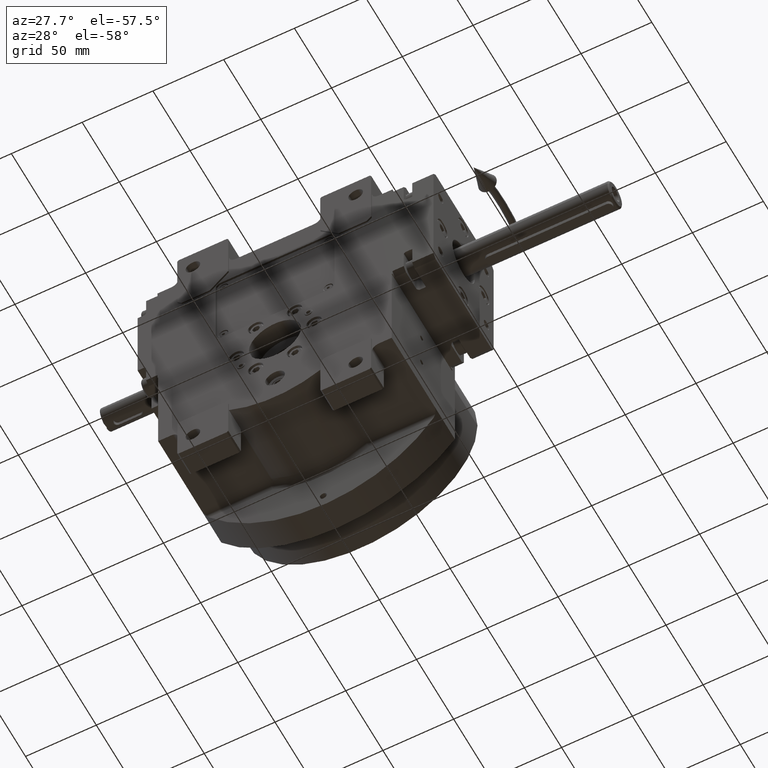
[diagram: clean part render]
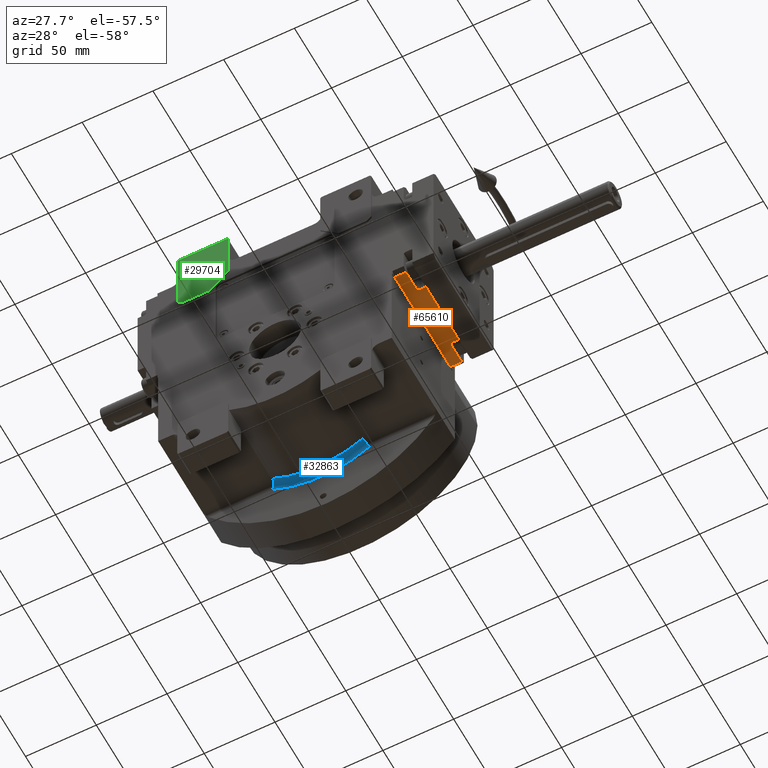
[diagram: same view with three faces highlighted in distinct colors, each labeled with its STEP entity id]
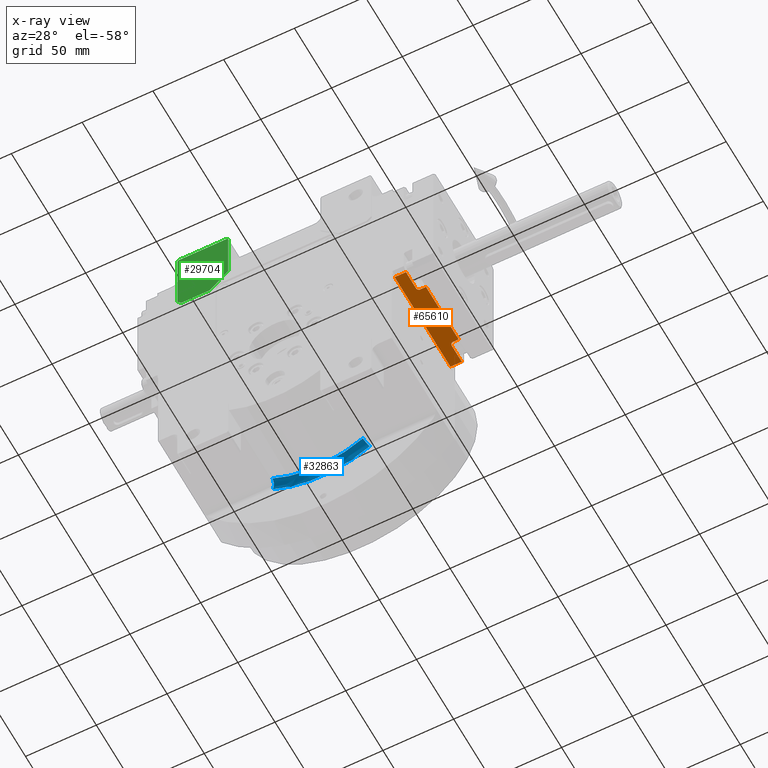
[diagram: x-ray of the same camera — body ghosted, the three highlighted faces saturated]
A machine part, auxiliary view with three faces highlighted in distinct colors.
The next image is the same camera in x-ray (body ghosted, the three faces saturated) — at least one of them is partly hidden behind the body in this view.
Their STEP definitions:

[orange] entity #65610 — the highlighted planar face has unit normal (-0, 0, -1).
#72 = EDGE_LOOP ( 'NONE', ( #55619, #17039, #46094, #15867, #63797, #61981, #9540, #61452, #35617, #29866 ) ) ;
#666 = DIRECTION ( 'NONE',  ( 2.320366121466574961E-14, -1.000000000000000000, 2.109423746787931928E-15 ) ) ;
#1286 = DIRECTION ( 'NONE',  ( 2.320366121466574961E-14, -1.000000000000000000, 2.109423746787931928E-15 ) ) ;
#2011 = EDGE_CURVE ( 'NONE', #30581, #4828, #23034, .T. ) ;
#3555 = LINE ( 'NONE', #57641, #24220 ) ;
#3794 = DIRECTION ( 'NONE',  ( -1.000000000000000000, 2.320366121466574014E-14, -8.437694987151244927E-15 ) ) ;
#4828 = VERTEX_POINT ( 'NONE', #44326 ) ;
#6676 = VERTEX_POINT ( 'NONE', #12312 ) ;
#8058 = CARTESIAN_POINT ( 'NONE',  ( 21.99999999999973355, -10.00000000000052225, -48.99999999999947420 ) ) ;
#8330 = EDGE_CURVE ( 'NONE', #55180, #6676, #25556, .T. ) ;
#8678 = CARTESIAN_POINT ( 'NONE',  ( 37.49999999999973710, -1.054711873393898713E-12, -48.99999999999947420 ) ) ;
#9540 = ORIENTED_EDGE ( 'NONE', *, *, #23403, .T. ) ;
#9860 = VECTOR ( 'NONE', #61350, 1000.000000000000000 ) ;
#11662 = VERTEX_POINT ( 'NONE', #60551 ) ;
#12135 = CARTESIAN_POINT ( 'NONE',  ( 23.99999999999960565, -8.000000000000520473, -48.99999999999947420 ) ) ;
#12312 = CARTESIAN_POINT ( 'NONE',  ( -24.00000000000039435, -7.999999999999466205, -49.00000000000000000 ) ) ;
#12352 = LINE ( 'NONE', #16919, #34782 ) ;
#12779 = CARTESIAN_POINT ( 'NONE',  ( 40.49999999999973710, -1.054711873393898713E-12, -48.99999999999947420 ) ) ;
#14283 = LINE ( 'NONE', #36717, #17923 ) ;
#14747 = EDGE_CURVE ( 'NONE', #6676, #4828, #3555, .T. ) ;
#15707 = CARTESIAN_POINT ( 'NONE',  ( 37.50000000000000000, -8.000000000001048051, -48.99999999999947420 ) ) ;
#15711 = DIRECTION ( 'NONE',  ( 8.437694987151240194E-15, -2.109423746787933900E-15, 1.000000000000000000 ) ) ;
#15867 = ORIENTED_EDGE ( 'NONE', *, *, #67994, .T. ) ;
#15983 = CARTESIAN_POINT ( 'NONE',  ( -37.50000000000026290, 1.054711873393898713E-12, -49.00000000000026290 ) ) ;
#16919 = CARTESIAN_POINT ( 'NONE',  ( 21.99999999999986855, -14.00000000000052580, -48.99999999999947420 ) ) ;
#17039 = ORIENTED_EDGE ( 'NONE', *, *, #22670, .F. ) ;
#17541 = DIRECTION ( 'NONE',  ( -2.320366121466574961E-14, 1.000000000000000000, -2.109423746787931928E-15 ) ) ;
#17923 = VECTOR ( 'NONE', #19891, 1000.000000000000000 ) ;
#18952 = CIRCLE ( 'NONE', #64993, 2.000000000000000000 ) ;
#19891 = DIRECTION ( 'NONE',  ( -2.320366121466574961E-14, 1.000000000000000000, -2.109423746787931928E-15 ) ) ;
#21296 = VERTEX_POINT ( 'NONE', #12135 ) ;
#21320 = DIRECTION ( 'NONE',  ( -2.255140518769849223E-14, 1.000000000000000000, -3.469446951953614189E-15 ) ) ;
#21900 = CARTESIAN_POINT ( 'NONE',  ( 21.99999999999986855, -14.00000000000052580, -48.99999999999947420 ) ) ;
#22174 = DIRECTION ( 'NONE',  ( -1.000000000000000000, 2.320366121466574014E-14, -8.437694987151244927E-15 ) ) ;
#22670 = EDGE_CURVE ( 'NONE', #11662, #30581, #45930, .T. ) ;
#23034 = LINE ( 'NONE', #43757, #65274 ) ;
#23403 = EDGE_CURVE ( 'NONE', #37714, #50571, #12352, .T. ) ;
#24220 = VECTOR ( 'NONE', #57972, 1000.000000000000000 ) ;
#25556 = CIRCLE ( 'NONE', #54735, 2.000000000000001776 ) ;
#25664 = EDGE_CURVE ( 'NONE', #21296, #32965, #18952, .T. ) ;
#27201 = FACE_OUTER_BOUND ( 'NONE', #72, .T. ) ;
#28100 = CARTESIAN_POINT ( 'NONE',  ( -22.00000000000013145, -13.99999999999947065, -49.00000000000000000 ) ) ;
#29833 = CARTESIAN_POINT ( 'NONE',  ( -22.00000000000026290, -9.999999999999467093, -49.00000000000000000 ) ) ;
#29866 = ORIENTED_EDGE ( 'NONE', *, *, #14747, .T. ) ;
#30236 = CARTESIAN_POINT ( 'NONE',  ( -22.00000000000013145, -13.99999999999947065, -49.00000000000000000 ) ) ;
#30581 = VERTEX_POINT ( 'NONE', #15983 ) ;
#32563 = CARTESIAN_POINT ( 'NONE',  ( 23.99999999999973710, -10.00000000000052225, -48.99999999999947420 ) ) ;
#32965 = VERTEX_POINT ( 'NONE', #8058 ) ;
#34782 = VECTOR ( 'NONE', #22174, 1000.000000000000000 ) ;
#35617 = ORIENTED_EDGE ( 'NONE', *, *, #8330, .T. ) ;
#36497 = VECTOR ( 'NONE', #666, 1000.000000000000000 ) ;
#36717 = CARTESIAN_POINT ( 'NONE',  ( 21.99999999999986855, -14.00000000000052580, -48.99999999999947420 ) ) ;
#37529 = CARTESIAN_POINT ( 'NONE',  ( -24.00000000000026290, -9.999999999999467093, -49.00000000000000000 ) ) ;
#37714 = VERTEX_POINT ( 'NONE', #21900 ) ;
#38402 = DIRECTION ( 'NONE',  ( 8.437694987151293837E-15, 2.109423746787542625E-15, -1.000000000000000000 ) ) ;
#39887 = LINE ( 'NONE', #49768, #9860 ) ;
#40846 = VECTOR ( 'NONE', #17541, 1000.000000000000000 ) ;
#41405 = VECTOR ( 'NONE', #3794, 1000.000000000000000 ) ;
#42803 = CARTESIAN_POINT ( 'NONE',  ( 37.49999999999973710, -1.054711873393898713E-12, -48.99999999999947420 ) ) ;
#43757 = CARTESIAN_POINT ( 'NONE',  ( -37.50000000000026290, 1.054711873393898713E-12, -49.00000000000026290 ) ) ;
#44326 = CARTESIAN_POINT ( 'NONE',  ( -37.50000000000000000, -7.999999999998938627, -49.00000000000026290 ) ) ;
#45930 = LINE ( 'NONE', #8678, #41405 ) ;
#46094 = ORIENTED_EDGE ( 'NONE', *, *, #47508, .T. ) ;
#47508 = EDGE_CURVE ( 'NONE', #11662, #66384, #69176, .T. ) ;
#48617 = DIRECTION ( 'NONE',  ( -1.000000000000000000, 2.320366121466574014E-14, -8.437694987151244927E-15 ) ) ;
#49768 = CARTESIAN_POINT ( 'NONE',  ( 37.50000000000000000, -8.000000000001048051, -48.99999999999947420 ) ) ;
#50571 = VERTEX_POINT ( 'NONE', #30236 ) ;
#53009 = DIRECTION ( 'NONE',  ( 1.000000000000000000, -2.515349040166368078E-14, 6.938893903907222067E-15 ) ) ;
#54735 = AXIS2_PLACEMENT_3D ( 'NONE', #37529, #58982, #53009 ) ;
#55180 = VERTEX_POINT ( 'NONE', #29833 ) ;
#55619 = ORIENTED_EDGE ( 'NONE', *, *, #2011, .F. ) ;
#55636 = EDGE_CURVE ( 'NONE', #37714, #32965, #14283, .T. ) ;
#57641 = CARTESIAN_POINT ( 'NONE',  ( -24.00000000000039435, -7.999999999999466205, -49.00000000000000000 ) ) ;
#57966 = AXIS2_PLACEMENT_3D ( 'NONE', #12779, #38402, #48617 ) ;
#57972 = DIRECTION ( 'NONE',  ( -1.000000000000000000, 2.320366121466574014E-14, -8.437694987151244927E-15 ) ) ;
#58982 = DIRECTION ( 'NONE',  ( 8.437694987151240194E-15, -2.109423746787933900E-15, 1.000000000000000000 ) ) ;
#60551 = CARTESIAN_POINT ( 'NONE',  ( 37.49999999999973710, -1.054711873393898713E-12, -48.99999999999947420 ) ) ;
#60920 = PLANE ( 'NONE',  #57966 ) ;
#61350 = DIRECTION ( 'NONE',  ( -1.000000000000000000, 2.320366121466574014E-14, -8.437694987151244927E-15 ) ) ;
#61452 = ORIENTED_EDGE ( 'NONE', *, *, #62990, .T. ) ;
#61981 = ORIENTED_EDGE ( 'NONE', *, *, #55636, .F. ) ;
#62990 = EDGE_CURVE ( 'NONE', #50571, #55180, #65353, .T. ) ;
#63797 = ORIENTED_EDGE ( 'NONE', *, *, #25664, .T. ) ;
#64993 = AXIS2_PLACEMENT_3D ( 'NONE', #32563, #15711, #21320 ) ;
#65274 = VECTOR ( 'NONE', #1286, 1000.000000000000000 ) ;
#65353 = LINE ( 'NONE', #28100, #40846 ) ;
#65610 = ADVANCED_FACE ( 'NONE', ( #27201 ), #60920, .T. ) ;
#66384 = VERTEX_POINT ( 'NONE', #15707 ) ;
#67994 = EDGE_CURVE ( 'NONE', #66384, #21296, #39887, .T. ) ;
#69176 = LINE ( 'NONE', #42803, #36497 ) ;

[blue] entity #32863 — the highlighted face is a freeform B-spline surface patch.
#15 = CARTESIAN_POINT ( 'NONE',  ( 14.73316211460674019, 17.55174771232135100, -65.60818881742689257 ) ) ;
#369 = CARTESIAN_POINT ( 'NONE',  ( 32.01794642272439262, 17.75200676098285157, -58.85445954576479721 ) ) ;
#699 = CARTESIAN_POINT ( 'NONE',  ( -31.65484861374630299, 22.02945599755280170, -64.31643460213680896 ) ) ;
#724 = CARTESIAN_POINT ( 'NONE',  ( 32.69782428689194376, 20.20639863448462492, -59.89099290944819387 ) ) ;
#1051 = CARTESIAN_POINT ( 'NONE',  ( 25.60877324666465071, 22.27561228193904697, -67.13024366902838835 ) ) ;
#1074 = CARTESIAN_POINT ( 'NONE',  ( 33.48383523637958348, 21.39952481451699740, -61.23323436435543243 ) ) ;
#1290 = CARTESIAN_POINT ( 'NONE',  ( 29.44072205902208239, 17.04842239295195228, -60.25462851536783404 ) ) ;
#1412 = CARTESIAN_POINT ( 'NONE',  ( -5.293759152372389032, 22.60964664401005209, -70.84867779253190179 ) ) ;
#1428 = CARTESIAN_POINT ( 'NONE',  ( 32.72256152614408364, 20.25982518854230108, -59.93185774238567376 ) ) ;
#1778 = CARTESIAN_POINT ( 'NONE',  ( 33.62399696553287498, 21.53086136857003652, -61.47963672372196697 ) ) ;
#2326 = B_SPLINE_CURVE_WITH_KNOTS ( 'NONE', 3,
 ( #25432, #46164, #67633, #14196, #8922, #30354, #51792, #3675, #46512, #46843, #14906, #57756, #7378, #55505, #59759, #54466, #49545, #724, #1428, #32701, #11947, #16524, #7032, #55167, #50228, #65007, #22132, #34070, #43551, #66062, #23544, #1074, #64661, #44577, #28466, #49892, #1778, #33728, #16872, #60440, #11615, #11276, #23178, #37932, #28800, #27756, #49180, #60096 ),
 .UNSPECIFIED., .F., .F.,
 ( 4, 2, 2, 1, 1, 2, 2, 2, 2, 1, 1, 1, 2, 2, 2, 2, 2, 1, 1, 1, 2, 2, 2, 2, 1, 1, 2, 2, 4 ),
 ( 0.000000000000000000, 0.1249999999999205635, 0.1874999999998815392, 0.2187499999998619438, 0.2343749999998528122, 0.2421874999998485933, 0.2499999999998444022, 0.3749999999997710165, 0.4374999999997347122, 0.4687499999997153388, 0.4843749999997056244, 0.4921874999997002398, 0.4960937499996980748, 0.4999999999996959099, 0.6249999999996843636, 0.6874999999996797007, 0.7187499999996763700, 0.7343749999996745936, 0.7421874999996742606, 0.7460937499996737055, 0.7480468749996734834, 0.7499999999996732614, 0.8124999999997548628, 0.8437499999997970512, 0.8593749999998184785, 0.8671874999998295808, 0.8710937499998353539, 0.8749999999998410161, 1.000000000000000000 ),
 .UNSPECIFIED. ) ;
#3675 = CARTESIAN_POINT ( 'NONE',  ( 32.19055830556653319, 18.61102054775242465, -59.09698003137811639 ) ) ;
#4599 = CARTESIAN_POINT ( 'NONE',  ( 5.080498079819370183, 21.43171770608825000, -68.64619728877529781 ) ) ;
#4634 = CARTESIAN_POINT ( 'NONE',  ( -23.47284083894535911, 22.32516390193326572, -67.69614973545274950 ) ) ;
#4931 = CARTESIAN_POINT ( 'NONE',  ( 32.58211394110570325, 20.03721122118130182, -59.69285158621150345 ) ) ;
#5263 = CARTESIAN_POINT ( 'NONE',  ( -29.48146737460379896, 17.88159068325219891, -60.23419211705630261 ) ) ;
#5632 = CARTESIAN_POINT ( 'NONE',  ( 31.98734971697150087, 16.91834084366389845, -58.87108418469269822 ) ) ;
#5981 = CARTESIAN_POINT ( 'NONE',  ( -14.78875358798659789, 18.38516779463245143, -65.59621327763490228 ) ) ;
#6193 = CARTESIAN_POINT ( 'NONE',  ( -29.45257542784745652, 17.04781651606748127, -60.24818422784169769 ) ) ;
#6311 = CARTESIAN_POINT ( 'NONE',  ( 5.189664148516230924, 22.33884502181484777, -70.04835568725430051 ) ) ;
#6531 = CARTESIAN_POINT ( 'NONE',  ( -14.77288173921127701, 17.55091193554919471, -65.59925739486833152 ) ) ;
#7032 = CARTESIAN_POINT ( 'NONE',  ( 32.84356451004986610, 20.51291761275329151, -60.13242002078200699 ) ) ;
#7378 = CARTESIAN_POINT ( 'NONE',  ( 32.35433031463118425, 19.28630331395154229, -59.33910833681502339 ) ) ;
#8922 = CARTESIAN_POINT ( 'NONE',  ( 32.10350489515772665, 18.14000914207347748, -58.97787707114111555 ) ) ;
#9841 = CARTESIAN_POINT ( 'NONE',  ( -29.60169563607699672, 18.70212772068944673, -60.40819800351219726 ) ) ;
#10210 = CARTESIAN_POINT ( 'NONE',  ( 25.01775090583850059, 21.94079065737765077, -65.60031027760419420 ) ) ;
#10242 = CARTESIAN_POINT ( 'NONE',  ( -31.74689637493835548, 22.02422287345092755, -64.25637803985283369 ) ) ;
#10557 = CARTESIAN_POINT ( 'NONE',  ( -32.58211292965309980, 20.03721089926845167, -59.69284975180789843 ) ) ;
#11249 = CARTESIAN_POINT ( 'NONE',  ( 23.94370797182140009, 18.94735996923695254, -63.03005720894730501 ) ) ;
#11276 = CARTESIAN_POINT ( 'NONE',  ( 33.89316598205211761, 21.72079560458065117, -61.95847620662187438 ) ) ;
#11367 = CARTESIAN_POINT ( 'NONE',  ( 34.37448425976209876, 21.89931667216864852, -62.82870454466170429 ) ) ;
#11615 = CARTESIAN_POINT ( 'NONE',  ( 33.85713766137644853, 21.69930227409577128, -61.89403531663299418 ) ) ;
#11924 = CARTESIAN_POINT ( 'NONE',  ( -25.04405692028204911, 21.93979951944659845, -65.58923440282170247 ) ) ;
#11947 = CARTESIAN_POINT ( 'NONE',  ( 32.74046267663956655, 20.29774043094684899, -59.96149064735983814 ) ) ;
#14196 = CARTESIAN_POINT ( 'NONE',  ( 32.08080791320756475, 17.98764634065216939, -58.94941265465860880 ) ) ;
#14826 = CARTESIAN_POINT ( 'NONE',  ( 31.74721959813282979, 22.02420755821067999, -64.25620298585577927 ) ) ;
#14906 = CARTESIAN_POINT ( 'NONE',  ( 32.21505596508978897, 18.72422514810597960, -59.13217146334259411 ) ) ;
#15132 = CARTESIAN_POINT ( 'NONE',  ( -30.00290205058615101, 20.16710264854260259, -61.10047760549640117 ) ) ;
#15161 = CARTESIAN_POINT ( 'NONE',  ( -2.989791404646014783, 22.66357855640624308, -71.56424693609983478 ) ) ;
#15456 = CARTESIAN_POINT ( 'NONE',  ( 33.58176531939849241, 21.56463036862644600, -61.39902706031460156 ) ) ;
#15612 = CARTESIAN_POINT ( 'NONE',  ( -31.98743979880390498, 16.91834305889650025, -58.87107689861610282 ) ) ;
#15829 = CARTESIAN_POINT ( 'NONE',  ( 4.939540259446429715, 17.68846715588675167, -67.06237765273100138 ) ) ;
#16450 = VERTEX_POINT ( 'NONE', #19954 ) ;
#16501 = CARTESIAN_POINT ( 'NONE',  ( 29.58978951225625309, 18.70273482888475058, -60.41468680097980126 ) ) ;
#16524 = CARTESIAN_POINT ( 'NONE',  ( 32.74468400485579167, 20.30659213609053992, -59.96848570823783575 ) ) ;
#16872 = CARTESIAN_POINT ( 'NONE',  ( 33.76859029514489663, 21.64106143382714009, -61.73612088267417874 ) ) ;
#18481 = CARTESIAN_POINT ( 'NONE',  ( 23.82086331600217122, 17.29258934410870197, -62.85166114526040104 ) ) ;
#19242 = EDGE_CURVE ( 'NONE', #16450, #37799, #2326, .T. ) ;
#19734 = CARTESIAN_POINT ( 'NONE',  ( -34.37448426114839606, 21.89931762037159757, -62.82870446426660749 ) ) ;
#19954 = CARTESIAN_POINT ( 'NONE',  ( 31.98743443817719623, 16.91834202203235193, -58.87106939620260704 ) ) ;
#20078 = CARTESIAN_POINT ( 'NONE',  ( 34.37448425976209876, 21.89931667216864852, -62.82870454466170429 ) ) ;
#20282 = ORIENTED_EDGE ( 'NONE', *, *, #19242, .F. ) ;
#20403 = CARTESIAN_POINT ( 'NONE',  ( -32.01794543039404317, 17.75200655022460339, -58.85445773622760157 ) ) ;
#20710 = EDGE_LOOP ( 'NONE', ( #55618, #47060, #20282, #54204 ) ) ;
#20736 = CARTESIAN_POINT ( 'NONE',  ( -5.122250627365549924, 21.43143416067259821, -68.64309445080189676 ) ) ;
#21063 = CARTESIAN_POINT ( 'NONE',  ( 32.87977152734590192, 20.65830054632354873, -60.18633690520509560 ) ) ;
#21100 = CARTESIAN_POINT ( 'NONE',  ( 5.969130634977448224, 22.64734071920593195, -71.37864760761658545 ) ) ;
#21444 = CARTESIAN_POINT ( 'NONE',  ( -32.87977050622575348, 20.65830019420030084, -60.18633505587489907 ) ) ;
#21789 = CARTESIAN_POINT ( 'NONE',  ( -23.84593569003270019, 17.29159919360714781, -62.84117147466660924 ) ) ;
#22132 = CARTESIAN_POINT ( 'NONE',  ( 33.31357684144703057, 21.21470799708574617, -60.93584403762083213 ) ) ;
#22346 = CARTESIAN_POINT ( 'NONE',  ( -31.98743979880390498, 16.91834305889650025, -58.87107689861610282 ) ) ;
#22472 = CARTESIAN_POINT ( 'NONE',  ( -25.63569944676440215, 22.27462078963334946, -67.11890327536170275 ) ) ;
#23178 = CARTESIAN_POINT ( 'NONE',  ( 33.90884330140355729, 21.72980709277304356, -61.98654436986177529 ) ) ;
#23521 = CARTESIAN_POINT ( 'NONE',  ( 31.64213078674164947, 22.03006558229255418, -64.32339653252410017 ) ) ;
#23544 = CARTESIAN_POINT ( 'NONE',  ( 33.46693639570202805, 21.38264226011981961, -61.20360356247892497 ) ) ;
#24525 = VERTEX_POINT ( 'NONE', #40920 ) ;
#25432 = CARTESIAN_POINT ( 'NONE',  ( 31.98743443817719623, 16.91834202203235193, -58.87106939620260704 ) ) ;
#25673 = CARTESIAN_POINT ( 'NONE',  ( -34.37448426114839606, 21.89931762037159757, -62.82870446426660749 ) ) ;
#25708 = CARTESIAN_POINT ( 'NONE',  ( 2.989797780335714528, 22.66357457562292410, -71.56420143553830826 ) ) ;
#26027 = CARTESIAN_POINT ( 'NONE',  ( -14.77288166437734063, 17.55090800214700053, -65.59925740921940474 ) ) ;
#26353 = CARTESIAN_POINT ( 'NONE',  ( -33.58176426494383549, 21.56462997295396988, -61.39902518003657406 ) ) ;
#26359 = CARTESIAN_POINT ( 'NONE',  ( -31.98734872618995340, 16.91834067345600090, -58.87108237431030489 ) ) ;
#26384 = CARTESIAN_POINT ( 'NONE',  ( -5.969118748666172536, 22.64733676919941985, -71.37860245883551613 ) ) ;
#26688 = CARTESIAN_POINT ( 'NONE',  ( 14.81049246554406018, 19.20702028404180339, -65.80666838281179309 ) ) ;
#26987 = B_SPLINE_CURVE_WITH_KNOTS ( 'NONE', 3,
 ( #20078, #14826, #52754, #69235, #42507, #58369, #52386, #21100, #25708, #15161, #26384, #41118, #36554, #58001, #4634, #67900, #10242, #19734 ),
 .UNSPECIFIED., .F., .F.,
 ( 4, 2, 2, 2, 2, 2, 2, 2, 4 ),
 ( 0.000000000000000000, 0.1250000000000000000, 0.2500000000000000000, 0.3750000000000000000, 0.5000000000000000000, 0.6250000000000000000, 0.7500000000000000000, 0.8750000000000000000, 1.000000000000000000 ),
 .UNSPECIFIED. ) ;
#27065 = CARTESIAN_POINT ( 'NONE',  ( 29.46960603675275081, 17.88219718071835018, -60.24064871479900773 ) ) ;
#27411 = CARTESIAN_POINT ( 'NONE',  ( 29.99084088730355191, 20.16771084712490136, -61.10706471000440132 ) ) ;
#27568 = CARTESIAN_POINT ( 'NONE',  ( -32.14775137455149689, 18.57243314881601393, -59.02158095131412807 ) ) ;
#27734 = CARTESIAN_POINT ( 'NONE',  ( -25.33772548572940053, 22.21075815114509666, -66.33927685919370276 ) ) ;
#27756 = CARTESIAN_POINT ( 'NONE',  ( 34.07635742203913765, 21.82262469278764527, -62.28672716919844987 ) ) ;
#28466 = CARTESIAN_POINT ( 'NONE',  ( 33.49901502991529156, 21.41446307854819153, -61.25986731557330245 ) ) ;
#28778 = CARTESIAN_POINT ( 'NONE',  ( 31.27435154526424910, 21.96622055914739846, -63.57628109349388978 ) ) ;
#28800 = CARTESIAN_POINT ( 'NONE',  ( 33.92535459463461223, 21.73912870223322003, -62.01611895463970825 ) ) ;
#29012 = CARTESIAN_POINT ( 'NONE',  ( 31.98743443817719623, 16.91834202203235193, -58.87106939620260704 ) ) ;
#29140 = CARTESIAN_POINT ( 'NONE',  ( -30.92465710468345108, 21.69472733084185023, -62.85209919801850020 ) ) ;
#30354 = CARTESIAN_POINT ( 'NONE',  ( 32.14281245953367971, 18.36695712941077119, -59.03041155637551185 ) ) ;
#31276 = CARTESIAN_POINT ( 'NONE',  ( 15.01361162066794996, 20.67284306709315089, -66.58199389556790493 ) ) ;
#31628 = CARTESIAN_POINT ( 'NONE',  ( -23.87045234341555044, 18.12560795860210305, -62.83233301949760374 ) ) ;
#31964 = CARTESIAN_POINT ( 'NONE',  ( -5.075381098711249983, 20.80979854058070089, -68.06676717787489395 ) ) ;
#32673 = CARTESIAN_POINT ( 'NONE',  ( 4.965702433001919935, 19.34401517241849788, -67.27165907835350822 ) ) ;
#32701 = CARTESIAN_POINT ( 'NONE',  ( 32.73328586040518928, 20.28259200613085511, -59.94960616786701735 ) ) ;
#32863 = ADVANCED_FACE ( 'NONE', ( #53743 ), #33950, .F. ) ;
#33017 = CARTESIAN_POINT ( 'NONE',  ( -15.70109730716845142, 22.47154757257565194, -69.28735807076829190 ) ) ;
#33218 = CARTESIAN_POINT ( 'NONE',  ( -4.980135495433235526, 17.68818881517152874, -67.05937529452785384 ) ) ;
#33338 = CARTESIAN_POINT ( 'NONE',  ( -5.356016771387229980, 22.67353917850849854, -71.68136855480990732 ) ) ;
#33705 = CARTESIAN_POINT ( 'NONE',  ( -31.28692157794700535, 21.96561102192774939, -63.56940012490900926 ) ) ;
#33728 = CARTESIAN_POINT ( 'NONE',  ( 33.73119429049442175, 21.61395435852485747, -61.66965452720889118 ) ) ;
#33950 = B_SPLINE_SURFACE_WITH_KNOTS ( 'NONE', 3, 3, ( 
 ( #5632, #63950, #64307, #15, #15829, #59379, #26027, #21789, #48815, #26359 ),
 ( #369, #27065, #48484, #43183, #64635, #68887, #5981, #31628, #5263, #20403 ),
 ( #37233, #16501, #11249, #26688, #32673, #47765, #36876, #69210, #9841, #58689 ),
 ( #4931, #27411, #41782, #31276, #36526, #31964, #53389, #63259, #15132, #10557 ),
 ( #21063, #42480, #57978, #52723, #4599, #20736, #42120, #63583, #48119, #21444 ),
 ( #15456, #42841, #10210, #53058, #6311, #43881, #39644, #11924, #29140, #60413 ),
 ( #49147, #28778, #55486, #50206, #44934, #1412, #33017, #27734, #33705, #44556 ),
 ( #54445, #23521, #1051, #64988, #39299, #33338, #34385, #22472, #699, #54781 ) ),
 .UNSPECIFIED., .F., .F., .F.,
 ( 4, 2, 2, 4 ),
 ( 4, 1, 1, 1, 1, 1, 1, 4 ),
 ( -5.349090900439799999E-08, 0.4980493630235890423, 0.9960987795380870091, 1.494148196052583977 ),
 ( 0.01506064934118959975, 0.1415550613721850148, 0.2844104620619999912, 0.4280550938335154765, 0.5719436702722410226, 0.7155885140798790012, 0.8584443337168500276, 0.9843486904440090779 ),
 .UNSPECIFIED. ) ;
#34070 = CARTESIAN_POINT ( 'NONE',  ( 33.34968649446624056, 21.25690745240459378, -60.99867444786077186 ) ) ;
#34385 = CARTESIAN_POINT ( 'NONE',  ( -15.88574857046580036, 22.53542943301765078, -70.10167552148800496 ) ) ;
#36526 = CARTESIAN_POINT ( 'NONE',  ( 5.034010421367740129, 20.81008187498295214, -68.06983930150960305 ) ) ;
#36554 = CARTESIAN_POINT ( 'NONE',  ( -14.83574960765554707, 22.53394690383062127, -70.08255036706712815 ) ) ;
#36876 = CARTESIAN_POINT ( 'NONE',  ( -14.85041617654067991, 19.20617887655184930, -65.79767106539189570 ) ) ;
#37233 = CARTESIAN_POINT ( 'NONE',  ( 32.14775238197429985, 18.57243339894680290, -59.02158275995419956 ) ) ;
#37799 = VERTEX_POINT ( 'NONE', #11367 ) ;
#37932 = CARTESIAN_POINT ( 'NONE',  ( 33.91934743153302634, 21.73576831729242897, -62.00535665183546286 ) ) ;
#39299 = CARTESIAN_POINT ( 'NONE',  ( 5.312359062531579745, 22.67382314555505118, -71.68461723454409196 ) ) ;
#39434 = VERTEX_POINT ( 'NONE', #15612 ) ;
#39644 = CARTESIAN_POINT ( 'NONE',  ( -15.51894356669414954, 22.20050738530104795, -68.50238787699559850 ) ) ;
#40920 = CARTESIAN_POINT ( 'NONE',  ( -34.37448426114839606, 21.89931762037159757, -62.82870446426660749 ) ) ;
#41118 = CARTESIAN_POINT ( 'NONE',  ( -11.90248989745663444, 22.58241322724574474, -70.63652297862456919 ) ) ;
#41782 = CARTESIAN_POINT ( 'NONE',  ( 24.27018054425809979, 20.41274173681960136, -63.76240717643119638 ) ) ;
#41829 = EDGE_CURVE ( 'NONE', #39434, #24525, #45346, .T. ) ;
#42120 = CARTESIAN_POINT ( 'NONE',  ( -15.19284511144029892, 21.29353192454400201, -67.13427375725019886 ) ) ;
#42480 = CARTESIAN_POINT ( 'NONE',  ( 30.26533976592959974, 20.78888421055715341, -61.61440901042910667 ) ) ;
#42507 = CARTESIAN_POINT ( 'NONE',  ( 20.63116238637816835, 22.40509573647655372, -68.60977478493825288 ) ) ;
#42841 = CARTESIAN_POINT ( 'NONE',  ( 30.91223167887569900, 21.69533666644165137, -62.85889895672319483 ) ) ;
#43183 = CARTESIAN_POINT ( 'NONE',  ( 14.74899353304840055, 18.38600836025720042, -65.60516387452921094 ) ) ;
#43551 = CARTESIAN_POINT ( 'NONE',  ( 33.40529059927756350, 21.31822588542240382, -61.09572500218396840 ) ) ;
#43881 = CARTESIAN_POINT ( 'NONE',  ( -5.232313598796380028, 22.33856116847615070, -70.04518290873480169 ) ) ;
#44107 = CARTESIAN_POINT ( 'NONE',  ( -23.84593580562536630, 17.29160312582579095, -62.84117143299615549 ) ) ;
#44556 = CARTESIAN_POINT ( 'NONE',  ( -33.97495223888379456, 21.83547720417900351, -62.09897148611660356 ) ) ;
#44577 = CARTESIAN_POINT ( 'NONE',  ( 33.49596927411045044, 21.41148316958645736, -61.25452229406503335 ) ) ;
#44934 = CARTESIAN_POINT ( 'NONE',  ( 5.250608913103330444, 22.60993058936840328, -70.85188868654628891 ) ) ;
#45346 = B_SPLINE_CURVE_WITH_KNOTS ( 'NONE', 3,
 ( #46041, #56927, #27568, #48969, #68196, #26353, #57297, #25673 ),
 .UNSPECIFIED., .F., .F.,
 ( 4, 2, 2, 4 ),
 ( 0.000000000000000000, 0.3333333333333335924, 0.6666666666666671848, 1.000000000000000000 ),
 .UNSPECIFIED. ) ;
#46041 = CARTESIAN_POINT ( 'NONE',  ( -31.98743979880390498, 16.91834305889650025, -58.87107689861610282 ) ) ;
#46164 = CARTESIAN_POINT ( 'NONE',  ( 31.99852157932058105, 17.22226205638403229, -58.86505566043709337 ) ) ;
#46512 = CARTESIAN_POINT ( 'NONE',  ( 32.20253065353806221, 18.66693435054510886, -59.11412820604594032 ) ) ;
#46843 = CARTESIAN_POINT ( 'NONE',  ( 32.21062267453432071, 18.70415746839778848, -59.12576714756355756 ) ) ;
#47060 = ORIENTED_EDGE ( 'NONE', *, *, #54802, .F. ) ;
#47765 = CARTESIAN_POINT ( 'NONE',  ( -5.006512162622009932, 19.34373233567044892, -67.26863427106378879 ) ) ;
#48032 = EDGE_CURVE ( 'NONE', #16450, #39434, #58687, .T. ) ;
#48119 = CARTESIAN_POINT ( 'NONE',  ( -30.27750872055215225, 20.78827554963325142, -61.60775735980099910 ) ) ;
#48484 = CARTESIAN_POINT ( 'NONE',  ( 23.84535878138364851, 18.12659505959519990, -62.84284412317220614 ) ) ;
#48815 = CARTESIAN_POINT ( 'NONE',  ( -29.45257529162520171, 17.04781258493639839, -60.24818429381119955 ) ) ;
#48969 = CARTESIAN_POINT ( 'NONE',  ( -32.58211291903631945, 20.03721089980311731, -59.69284975760209733 ) ) ;
#49147 = CARTESIAN_POINT ( 'NONE',  ( 33.97495329477499837, 21.83547761356124894, -62.09897339379189418 ) ) ;
#49180 = CARTESIAN_POINT ( 'NONE',  ( 34.22504648665845650, 21.87552267231701464, -62.55672696553510548 ) ) ;
#49545 = CARTESIAN_POINT ( 'NONE',  ( 32.64949430569751598, 20.09837154108942769, -59.81145617187603847 ) ) ;
#49748 = CARTESIAN_POINT ( 'NONE',  ( 14.73316218924969867, 17.55175164572757396, -65.60818880316627144 ) ) ;
#49892 = CARTESIAN_POINT ( 'NONE',  ( 33.55919131906695441, 21.47314760397791389, -61.36548467847053701 ) ) ;
#50206 = CARTESIAN_POINT ( 'NONE',  ( 15.65889487797699964, 22.47239232837635114, -69.29690724126749046 ) ) ;
#50228 = CARTESIAN_POINT ( 'NONE',  ( 33.14167064679252661, 20.99373569009000207, -60.63854115864183569 ) ) ;
#51792 = CARTESIAN_POINT ( 'NONE',  ( 32.16378153835762532, 18.48003092852795604, -59.05913719526966332 ) ) ;
#52386 = CARTESIAN_POINT ( 'NONE',  ( 11.90248994995745058, 22.58240927723912250, -70.63647782984223511 ) ) ;
#52723 = CARTESIAN_POINT ( 'NONE',  ( 15.15200614646964894, 21.29437547240680217, -67.14350210244010952 ) ) ;
#52754 = CARTESIAN_POINT ( 'NONE',  ( 29.04086476617816714, 22.13437532320985923, -65.51542630187469740 ) ) ;
#53058 = CARTESIAN_POINT ( 'NONE',  ( 15.47723018580565046, 22.20135186317695286, -68.51182380416469186 ) ) ;
#53389 = CARTESIAN_POINT ( 'NONE',  ( -15.05407910445714847, 20.67200015654930212, -66.57285659245719955 ) ) ;
#53743 = FACE_OUTER_BOUND ( 'NONE', #20710, .T. ) ;
#54204 = ORIENTED_EDGE ( 'NONE', *, *, #48032, .T. ) ;
#54445 = CARTESIAN_POINT ( 'NONE',  ( 34.37448532946400093, 21.89931399913935195, -62.82870674722110493 ) ) ;
#54466 = CARTESIAN_POINT ( 'NONE',  ( 32.61002891604541531, 20.00390710677695338, -59.74704011465331632 ) ) ;
#54781 = CARTESIAN_POINT ( 'NONE',  ( -34.37448426115155087, 21.89931358665204897, -62.82870481713079158 ) ) ;
#54802 = EDGE_CURVE ( 'NONE', #37799, #24525, #26987, .T. ) ;
#55167 = CARTESIAN_POINT ( 'NONE',  ( 32.95368136968663464, 20.71200517943965025, -60.31722614015441764 ) ) ;
#55486 = CARTESIAN_POINT ( 'NONE',  ( 25.31111222606615030, 22.21174957585860099, -66.35048536335919778 ) ) ;
#55505 = CARTESIAN_POINT ( 'NONE',  ( 32.48629044923389841, 19.68265260997892696, -59.54728963544215503 ) ) ;
#55618 = ORIENTED_EDGE ( 'NONE', *, *, #41829, .T. ) ;
#56927 = CARTESIAN_POINT ( 'NONE',  ( -32.01794541995315058, 17.75200655075800782, -58.85445774190699098 ) ) ;
#57297 = CARTESIAN_POINT ( 'NONE',  ( -33.97495222781908808, 21.83547720471467812, -62.09897149216929790 ) ) ;
#57756 = CARTESIAN_POINT ( 'NONE',  ( 32.28007184173921473, 19.01449822969751580, -59.22643570895439780 ) ) ;
#57978 = CARTESIAN_POINT ( 'NONE',  ( 24.49311927717645077, 21.03408714449059858, -64.29591374703228723 ) ) ;
#58001 = CARTESIAN_POINT ( 'NONE',  ( -20.63116937147355046, 22.40509959465580891, -68.60981888412888452 ) ) ;
#58369 = CARTESIAN_POINT ( 'NONE',  ( 14.83576610642443683, 22.53395076200965974, -70.08259446625528710 ) ) ;
#58687 = B_SPLINE_CURVE_WITH_KNOTS ( 'NONE', 3,
 ( #29012, #1290, #18481, #49748, #65895, #33218, #6531, #44107, #6193, #22346 ),
 .UNSPECIFIED., .F., .F.,
 ( 4, 1, 1, 1, 1, 1, 1, 4 ),
 ( 0.000000000000000000, 0.1305023962609451471, 0.2778841802425977558, 0.4260802021475848522, 0.5745278981235040217, 0.7227241387829929087, 0.8701063549861712820, 1.000000000000000000 ),
 .UNSPECIFIED. ) ;
#58689 = CARTESIAN_POINT ( 'NONE',  ( -32.14775138503180330, 18.57243314828215119, -59.02158094560640222 ) ) ;
#59379 = CARTESIAN_POINT ( 'NONE',  ( -4.980135469638319989, 17.68818488111210030, -67.05937529392119245 ) ) ;
#59759 = CARTESIAN_POINT ( 'NONE',  ( 32.53370187337065289, 19.81285199359001936, -59.62319584522479943 ) ) ;
#60096 = CARTESIAN_POINT ( 'NONE',  ( 34.37448425976209876, 21.89931667216864852, -62.82870454466170429 ) ) ;
#60413 = CARTESIAN_POINT ( 'NONE',  ( -33.58176427588125534, 21.56462997241844803, -61.39902517405529636 ) ) ;
#60440 = CARTESIAN_POINT ( 'NONE',  ( 33.82720233730306347, 21.68015116134838749, -61.84060092327543146 ) ) ;
#63259 = CARTESIAN_POINT ( 'NONE',  ( -24.29570833834564780, 20.41175221617285018, -63.75167992997710087 ) ) ;
#63583 = CARTESIAN_POINT ( 'NONE',  ( -24.51887821482065277, 21.03309696621295188, -64.28508042708929793 ) ) ;
#63950 = CARTESIAN_POINT ( 'NONE',  ( 29.44072192283740108, 17.04841846181794907, -60.25462858127929877 ) ) ;
#64307 = CARTESIAN_POINT ( 'NONE',  ( 23.82086320050884964, 17.29258541188589859, -62.85166118683000036 ) ) ;
#64635 = CARTESIAN_POINT ( 'NONE',  ( 4.944966889311680269, 18.52286662855195232, -67.06251259139111198 ) ) ;
#64661 = CARTESIAN_POINT ( 'NONE',  ( 33.49111118290952760, 21.40670698740588307, -61.24599844153117800 ) ) ;
#64988 = CARTESIAN_POINT ( 'NONE',  ( 15.84304983925120069, 22.53627425432280162, -70.11133706324248749 ) ) ;
#65007 = CARTESIAN_POINT ( 'NONE',  ( 33.20812734061839677, 21.08478091162955792, -60.75296467484636764 ) ) ;
#65895 = CARTESIAN_POINT ( 'NONE',  ( 4.939540285032240519, 17.68847108994751594, -67.06237765336878454 ) ) ;
#66062 = CARTESIAN_POINT ( 'NONE',  ( 33.43345245199208904, 21.34838968287522221, -61.14495112640866381 ) ) ;
#67633 = CARTESIAN_POINT ( 'NONE',  ( 32.02311471396220810, 17.52935285823654965, -58.88333062413673957 ) ) ;
#67900 = CARTESIAN_POINT ( 'NONE',  ( -29.04105011325574992, 22.13437318037911794, -65.51540180920734713 ) ) ;
#68196 = CARTESIAN_POINT ( 'NONE',  ( -32.87977049551408726, 20.65830019473531820, -60.18633506172589165 ) ) ;
#68887 = CARTESIAN_POINT ( 'NONE',  ( -4.985606449715559663, 18.52258407054160116, -67.05950363468579667 ) ) ;
#69210 = CARTESIAN_POINT ( 'NONE',  ( -23.96890041528294901, 18.94637199954769713, -63.01949236013039268 ) ) ;
#69235 = CARTESIAN_POINT ( 'NONE',  ( 23.47303169947996793, 22.32516175910221179, -67.69612524278177546 ) ) ;

[green] entity #29704 — the highlighted planar face has unit normal (0, -1, 0).
#207 = EDGE_CURVE ( 'NONE', #38719, #46410, #43845, .T. ) ;
#1067 = CARTESIAN_POINT ( 'NONE',  ( -33.49999999999934630, -41.50000000000000000, 140.0000000000000000 ) ) ;
#1282 = VERTEX_POINT ( 'NONE', #46696 ) ;
#2069 = AXIS2_PLACEMENT_3D ( 'NONE', #66847, #44330, #60171 ) ;
#2573 = EDGE_LOOP ( 'NONE', ( #63023, #35631 ) ) ;
#2996 = CARTESIAN_POINT ( 'NONE',  ( -32.49999999999934630, -41.50000000000000000, 139.0000000000000000 ) ) ;
#3122 = DIRECTION ( 'NONE',  ( -0.7071067811865500152, 0.000000000000000000, 0.7071067811865450192 ) ) ;
#3191 = DIRECTION ( 'NONE',  ( 0.000000000000000000, 0.000000000000000000, 1.000000000000000000 ) ) ;
#3193 = VECTOR ( 'NONE', #21466, 1000.000000000000000 ) ;
#3734 = DIRECTION ( 'NONE',  ( -0.7071067811865474617, 0.000000000000000000, -0.7071067811865474617 ) ) ;
#5358 = EDGE_CURVE ( 'NONE', #59797, #29280, #36132, .T. ) ;
#6765 = PLANE ( 'NONE',  #15847 ) ;
#8106 = CARTESIAN_POINT ( 'NONE',  ( -65.50000000000000000, -41.50000000000000000, 89.00000000000000000 ) ) ;
#8404 = CARTESIAN_POINT ( 'NONE',  ( -32.49999999999934630, -41.50000000000000000, 139.0000000000000000 ) ) ;
#8874 = EDGE_CURVE ( 'NONE', #29280, #59489, #49174, .T. ) ;
#9489 = DIRECTION ( 'NONE',  ( 0.7071067811865480168, 0.000000000000000000, 0.7071067811865470176 ) ) ;
#9799 = VECTOR ( 'NONE', #43685, 1000.000000000000000 ) ;
#10150 = CARTESIAN_POINT ( 'NONE',  ( -65.50000000000000000, -41.50000000000000000, 89.00000000000000000 ) ) ;
#10226 = VECTOR ( 'NONE', #3122, 1000.000000000000000 ) ;
#11882 = CARTESIAN_POINT ( 'NONE',  ( -68.50000000000000000, -41.50000000000000000, 92.00000000000000000 ) ) ;
#13552 = ORIENTED_EDGE ( 'NONE', *, *, #41824, .T. ) ;
#13790 = EDGE_LOOP ( 'NONE', ( #67842, #58284, #49122, #64161, #67716, #25998, #13552, #49344 ) ) ;
#13923 = LINE ( 'NONE', #35327, #37389 ) ;
#15519 = EDGE_CURVE ( 'NONE', #59489, #20930, #13923, .T. ) ;
#15847 = AXIS2_PLACEMENT_3D ( 'NONE', #44323, #34479, #65774 ) ;
#17042 = VECTOR ( 'NONE', #3191, 1000.000000000000000 ) ;
#20930 = VERTEX_POINT ( 'NONE', #42518 ) ;
#21466 = DIRECTION ( 'NONE',  ( -1.000000000000000000, 0.000000000000000000, 0.000000000000000000 ) ) ;
#22911 = FACE_BOUND ( 'NONE', #2573, .T. ) ;
#25672 = CIRCLE ( 'NONE', #50335, 5.249999999999997335 ) ;
#25998 = ORIENTED_EDGE ( 'NONE', *, *, #49338, .T. ) ;
#26171 = CARTESIAN_POINT ( 'NONE',  ( -68.50000000000000000, -41.50000000000000000, 139.0000000000000000 ) ) ;
#27325 = CARTESIAN_POINT ( 'NONE',  ( -57.50000000000000000, -41.50000000000000000, 125.0000000000000000 ) ) ;
#27647 = DIRECTION ( 'NONE',  ( 0.000000000000000000, 1.000000000000000000, 0.000000000000000000 ) ) ;
#29280 = VERTEX_POINT ( 'NONE', #51421 ) ;
#29534 = DIRECTION ( 'NONE',  ( 1.000000000000000000, 0.000000000000000000, 0.000000000000000000 ) ) ;
#29704 = ADVANCED_FACE ( 'NONE', ( #22911, #54884 ), #6765, .T. ) ;
#29883 = LINE ( 'NONE', #51311, #17042 ) ;
#30600 = EDGE_CURVE ( 'NONE', #20930, #38719, #64456, .T. ) ;
#30816 = CARTESIAN_POINT ( 'NONE',  ( -67.50000000000000000, -41.50000000000000000, 140.0000000000000000 ) ) ;
#32014 = CARTESIAN_POINT ( 'NONE',  ( -68.50000000000000000, -41.50000000000000000, 92.00000000000000000 ) ) ;
#32592 = DIRECTION ( 'NONE',  ( -1.000000000000000000, 0.000000000000000000, 5.286776307738843186E-15 ) ) ;
#33295 = EDGE_CURVE ( 'NONE', #65899, #60110, #25672, .T. ) ;
#34232 = VECTOR ( 'NONE', #9489, 1000.000000000000000 ) ;
#34479 = DIRECTION ( 'NONE',  ( 0.000000000000000000, -1.000000000000000000, 0.000000000000000000 ) ) ;
#35327 = CARTESIAN_POINT ( 'NONE',  ( -67.50000000000000000, -41.50000000000000000, 140.0000000000000000 ) ) ;
#35631 = ORIENTED_EDGE ( 'NONE', *, *, #33295, .T. ) ;
#36132 = LINE ( 'NONE', #8404, #10226 ) ;
#36438 = EDGE_CURVE ( 'NONE', #60110, #65899, #43540, .T. ) ;
#37389 = VECTOR ( 'NONE', #3734, 1000.000000000000114 ) ;
#38719 = VERTEX_POINT ( 'NONE', #32014 ) ;
#41824 = EDGE_CURVE ( 'NONE', #1282, #59797, #29883, .T. ) ;
#42518 = CARTESIAN_POINT ( 'NONE',  ( -68.50000000000000000, -41.50000000000000000, 139.0000000000000000 ) ) ;
#43540 = CIRCLE ( 'NONE', #2069, 5.249999999999997335 ) ;
#43685 = DIRECTION ( 'NONE',  ( 0.000000000000000000, 0.000000000000000000, -1.000000000000000000 ) ) ;
#43845 = LINE ( 'NONE', #11882, #67350 ) ;
#44323 = CARTESIAN_POINT ( 'NONE',  ( 0.000000000000000000, -41.50000000000000000, 0.000000000000000000 ) ) ;
#44330 = DIRECTION ( 'NONE',  ( 0.000000000000000000, 1.000000000000000000, 0.000000000000000000 ) ) ;
#44735 = CARTESIAN_POINT ( 'NONE',  ( -45.49999999999939604, -41.50000000000000000, 89.00000000000000000 ) ) ;
#45646 = LINE ( 'NONE', #8106, #55288 ) ;
#46410 = VERTEX_POINT ( 'NONE', #10150 ) ;
#46696 = CARTESIAN_POINT ( 'NONE',  ( -32.49999999999934630, -41.50000000000000000, 102.0000000000000000 ) ) ;
#48791 = CARTESIAN_POINT ( 'NONE',  ( -62.75000000000000000, -41.50000000000000000, 125.0000000000000000 ) ) ;
#49122 = ORIENTED_EDGE ( 'NONE', *, *, #30600, .T. ) ;
#49174 = LINE ( 'NONE', #1067, #3193 ) ;
#49311 = CARTESIAN_POINT ( 'NONE',  ( -52.25000000000000000, -41.50000000000000000, 125.0000000000000000 ) ) ;
#49338 = EDGE_CURVE ( 'NONE', #68415, #1282, #53039, .T. ) ;
#49344 = ORIENTED_EDGE ( 'NONE', *, *, #5358, .T. ) ;
#50335 = AXIS2_PLACEMENT_3D ( 'NONE', #27325, #27647, #32592 ) ;
#51311 = CARTESIAN_POINT ( 'NONE',  ( -32.49999999999934630, -41.50000000000000000, 102.0000000000000000 ) ) ;
#51421 = CARTESIAN_POINT ( 'NONE',  ( -33.49999999999934630, -41.50000000000000000, 140.0000000000000000 ) ) ;
#53039 = LINE ( 'NONE', #64877, #34232 ) ;
#54884 = FACE_OUTER_BOUND ( 'NONE', #13790, .T. ) ;
#55288 = VECTOR ( 'NONE', #29534, 1000.000000000000000 ) ;
#58284 = ORIENTED_EDGE ( 'NONE', *, *, #15519, .T. ) ;
#59029 = EDGE_CURVE ( 'NONE', #46410, #68415, #45646, .T. ) ;
#59489 = VERTEX_POINT ( 'NONE', #30816 ) ;
#59797 = VERTEX_POINT ( 'NONE', #2996 ) ;
#60110 = VERTEX_POINT ( 'NONE', #49311 ) ;
#60171 = DIRECTION ( 'NONE',  ( 1.000000000000000000, 0.000000000000000000, 5.286776307738843186E-15 ) ) ;
#60369 = DIRECTION ( 'NONE',  ( 0.7071067811865474617, 0.000000000000000000, -0.7071067811865474617 ) ) ;
#63023 = ORIENTED_EDGE ( 'NONE', *, *, #36438, .T. ) ;
#64161 = ORIENTED_EDGE ( 'NONE', *, *, #207, .T. ) ;
#64456 = LINE ( 'NONE', #26171, #9799 ) ;
#64877 = CARTESIAN_POINT ( 'NONE',  ( -45.49999999999939604, -41.50000000000000000, 89.00000000000000000 ) ) ;
#65774 = DIRECTION ( 'NONE',  ( -1.000000000000000000, 0.000000000000000000, 0.000000000000000000 ) ) ;
#65899 = VERTEX_POINT ( 'NONE', #48791 ) ;
#66847 = CARTESIAN_POINT ( 'NONE',  ( -57.50000000000000000, -41.50000000000000000, 125.0000000000000000 ) ) ;
#67350 = VECTOR ( 'NONE', #60369, 1000.000000000000114 ) ;
#67716 = ORIENTED_EDGE ( 'NONE', *, *, #59029, .T. ) ;
#67842 = ORIENTED_EDGE ( 'NONE', *, *, #8874, .T. ) ;
#68415 = VERTEX_POINT ( 'NONE', #44735 ) ;